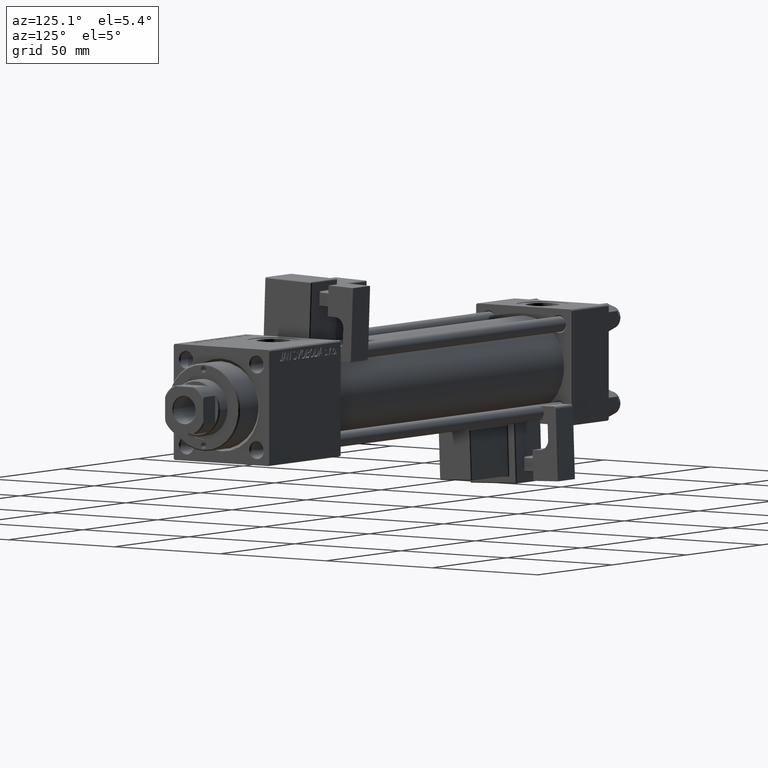
[diagram: clean part render]
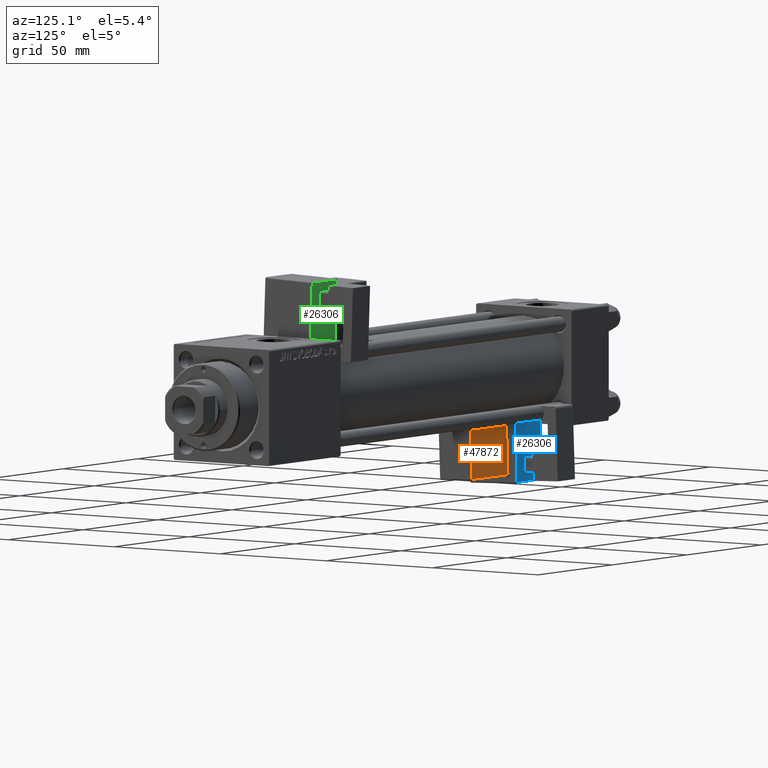
[diagram: same view with three faces highlighted in distinct colors, each labeled with its STEP entity id]
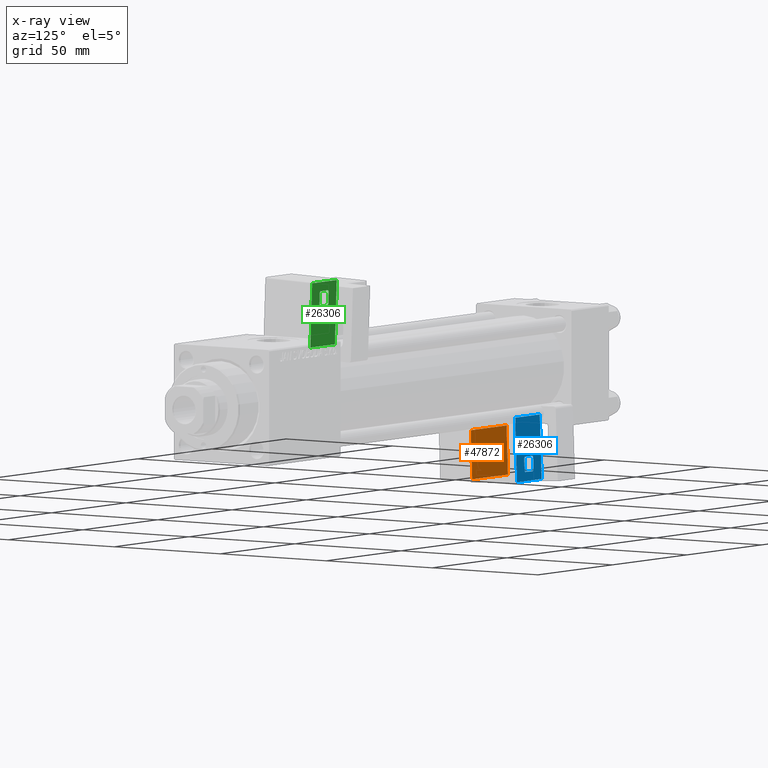
[diagram: x-ray of the same camera — body ghosted, the three highlighted faces saturated]
A machine part, auxiliary view with three faces highlighted in distinct colors.
The next image is the same camera in x-ray (body ghosted, the three faces saturated) — at least one of them is partly hidden behind the body in this view.
Their STEP definitions:

[orange] entity #47872 — the highlighted planar face has unit normal (0, -0.9994, -0.0353).
#728 = LINE ( 'NONE', #8928, #33169 ) ;
#3632 = DIRECTION ( 'NONE',  ( 0.000000000000000000, -1.000000000000000000, 0.000000000000000000 ) ) ;
#8928 = CARTESIAN_POINT ( 'NONE',  ( 33.25000000000000000, -15.25000000000000000, 2.000000000000008438 ) ) ;
#10077 = VERTEX_POINT ( 'NONE', #19362 ) ;
#10282 = EDGE_CURVE ( 'NONE', #50573, #42172, #13074, .T. ) ;
#10661 = EDGE_CURVE ( 'NONE', #10077, #25822, #18696, .T. ) ;
#11061 = CARTESIAN_POINT ( 'NONE',  ( 33.75000000000000000, -15.25000000000000000, 2.500000000000009326 ) ) ;
#11903 = CARTESIAN_POINT ( 'NONE',  ( 9.250000000000001776, -15.25000000000000000, 22.00000000000000355 ) ) ;
#12024 = CARTESIAN_POINT ( 'NONE',  ( 9.250000000000003553, -15.25000000000000000, 2.500000000000005773 ) ) ;
#13074 = LINE ( 'NONE', #46734, #23491 ) ;
#16238 = AXIS2_PLACEMENT_3D ( 'NONE', #34006, #3632, #20245 ) ;
#17438 = PLANE ( 'NONE',  #16238 ) ;
#18696 = LINE ( 'NONE', #11061, #40014 ) ;
#18723 = EDGE_LOOP ( 'NONE', ( #48418, #52258, #23457, #50899 ) ) ;
#19362 = CARTESIAN_POINT ( 'NONE',  ( 33.25000000000000000, -15.25000000000000000, 2.500000000000009326 ) ) ;
#20245 = DIRECTION ( 'NONE',  ( 0.000000000000000000, -0.000000000000000000, -1.000000000000000000 ) ) ;
#21223 = CARTESIAN_POINT ( 'NONE',  ( 33.25000000000000000, -15.25000000000000000, 21.50000000000000355 ) ) ;
#23457 = ORIENTED_EDGE ( 'NONE', *, *, #10282, .T. ) ;
#23491 = VECTOR ( 'NONE', #46204, 1000.000000000000000 ) ;
#25822 = VERTEX_POINT ( 'NONE', #12024 ) ;
#30959 = EDGE_CURVE ( 'NONE', #42172, #10077, #728, .T. ) ;
#31100 = CARTESIAN_POINT ( 'NONE',  ( 9.250000000000001776, -15.25000000000000000, 21.50000000000000000 ) ) ;
#33169 = VECTOR ( 'NONE', #49930, 1000.000000000000000 ) ;
#34006 = CARTESIAN_POINT ( 'NONE',  ( 33.75000000000000000, -15.25000000000000000, 22.00000000000000711 ) ) ;
#37693 = DIRECTION ( 'NONE',  ( -1.334402673828313339E-16, 0.000000000000000000, 1.000000000000000000 ) ) ;
#39560 = EDGE_CURVE ( 'NONE', #25822, #50573, #45325, .T. ) ;
#40014 = VECTOR ( 'NONE', #43134, 1000.000000000000000 ) ;
#40889 = FACE_OUTER_BOUND ( 'NONE', #18723, .T. ) ;
#42172 = VERTEX_POINT ( 'NONE', #21223 ) ;
#43134 = DIRECTION ( 'NONE',  ( -1.000000000000000000, 0.000000000000000000, -1.334402673828313339E-16 ) ) ;
#45325 = LINE ( 'NONE', #11903, #48087 ) ;
#46204 = DIRECTION ( 'NONE',  ( 1.000000000000000000, -0.000000000000000000, 1.334402673828313339E-16 ) ) ;
#46734 = CARTESIAN_POINT ( 'NONE',  ( 33.75000000000000000, -15.25000000000000000, 21.50000000000000355 ) ) ;
#47872 = ADVANCED_FACE ( 'NONE', ( #40889 ), #17438, .F. ) ;
#48087 = VECTOR ( 'NONE', #37693, 1000.000000000000000 ) ;
#48418 = ORIENTED_EDGE ( 'NONE', *, *, #10661, .T. ) ;
#49930 = DIRECTION ( 'NONE',  ( 1.734723475976807341E-16, -0.000000000000000000, -1.000000000000000000 ) ) ;
#50573 = VERTEX_POINT ( 'NONE', #31100 ) ;
#50899 = ORIENTED_EDGE ( 'NONE', *, *, #30959, .T. ) ;
#52258 = ORIENTED_EDGE ( 'NONE', *, *, #39560, .T. ) ;

[blue] entity #26306 — the highlighted planar face has unit normal (0, 0.9994, 0.0353).
#196 = VECTOR ( 'NONE', #35463, 1000.000000000000000 ) ;
#306 = ORIENTED_EDGE ( 'NONE', *, *, #2851, .T. ) ;
#349 = VERTEX_POINT ( 'NONE', #16246 ) ;
#536 = EDGE_CURVE ( 'NONE', #22992, #32422, #43758, .T. ) ;
#753 = VECTOR ( 'NONE', #18063, 1000.000000000000000 ) ;
#1219 = DIRECTION ( 'NONE',  ( -1.445602896647339163E-16, -0.000000000000000000, 1.000000000000000000 ) ) ;
#1527 = LINE ( 'NONE', #30636, #25609 ) ;
#1922 = EDGE_CURVE ( 'NONE', #33480, #13514, #35123, .T. ) ;
#2466 = EDGE_CURVE ( 'NONE', #13582, #349, #8608, .T. ) ;
#2851 = EDGE_CURVE ( 'NONE', #349, #28351, #42224, .T. ) ;
#2978 = CARTESIAN_POINT ( 'NONE',  ( -8.750000000000003553, -11.75000000000000000, -0.5000000000000002220 ) ) ;
#3792 = ORIENTED_EDGE ( 'NONE', *, *, #1922, .T. ) ;
#4761 = CARTESIAN_POINT ( 'NONE',  ( -2.499999999999978684, -11.75000000000000000, 3.000000000000000444 ) ) ;
#5103 = CARTESIAN_POINT ( 'NONE',  ( 3.000000000000000888, -11.75000000000000000, 3.500000000000008438 ) ) ;
#5224 = ORIENTED_EDGE ( 'NONE', *, *, #32495, .T. ) ;
#6403 = VERTEX_POINT ( 'NONE', #18248 ) ;
#6504 = CARTESIAN_POINT ( 'NONE',  ( -8.250000000000003553, -11.75000000000000000, -0.5000000000000002220 ) ) ;
#7328 = LINE ( 'NONE', #2978, #22363 ) ;
#7678 = EDGE_LOOP ( 'NONE', ( #16502, #33197, #3792, #16969, #29409, #10315, #306, #30737 ) ) ;
#8608 = LINE ( 'NONE', #4761, #40706 ) ;
#9376 = VECTOR ( 'NONE', #19324, 1000.000000000000000 ) ;
#9557 = AXIS2_PLACEMENT_3D ( 'NONE', #41565, #53511, #25266 ) ;
#9686 = CARTESIAN_POINT ( 'NONE',  ( 8.250000000000003553, -11.75000000000000000, -0.5000000000000002220 ) ) ;
#9978 = DIRECTION ( 'NONE',  ( 0.7071067811865474617, -0.000000000000000000, 0.7071067811865474617 ) ) ;
#10315 = ORIENTED_EDGE ( 'NONE', *, *, #2466, .T. ) ;
#10748 = LINE ( 'NONE', #52568, #196 ) ;
#13514 = VERTEX_POINT ( 'NONE', #45604 ) ;
#13582 = VERTEX_POINT ( 'NONE', #50741 ) ;
#14496 = CARTESIAN_POINT ( 'NONE',  ( 3.000000000000000888, -11.75000000000000000, 3.000000000000000888 ) ) ;
#14693 = LINE ( 'NONE', #34805, #41629 ) ;
#15915 = CARTESIAN_POINT ( 'NONE',  ( -3.000000000000000000, -11.75000000000000000, 8.500000000000007105 ) ) ;
#16060 = ORIENTED_EDGE ( 'NONE', *, *, #536, .T. ) ;
#16246 = CARTESIAN_POINT ( 'NONE',  ( -2.499999999999976907, -11.75000000000000000, 3.000000000000000444 ) ) ;
#16502 = ORIENTED_EDGE ( 'NONE', *, *, #47509, .T. ) ;
#16969 = ORIENTED_EDGE ( 'NONE', *, *, #28021, .T. ) ;
#17101 = FACE_BOUND ( 'NONE', #7678, .T. ) ;
#18063 = DIRECTION ( 'NONE',  ( 1.000000000000000000, -0.000000000000000000, 7.228014483236695816E-17 ) ) ;
#18113 = CARTESIAN_POINT ( 'NONE',  ( 3.000000000000000000, -11.75000000000000000, 9.000000000000001776 ) ) ;
#18248 = CARTESIAN_POINT ( 'NONE',  ( -8.250000000000000000, -11.75000000000000000, 24.50000000000000000 ) ) ;
#18780 = DIRECTION ( 'NONE',  ( -1.000000000000000000, 0.000000000000000000, -0.000000000000000000 ) ) ;
#19324 = DIRECTION ( 'NONE',  ( 1.334402673828313339E-16, -0.000000000000000000, -1.000000000000000000 ) ) ;
#19581 = CARTESIAN_POINT ( 'NONE',  ( 8.250000000000003553, -11.75000000000000000, -1.000000000000000888 ) ) ;
#20007 = LINE ( 'NONE', #15915, #26131 ) ;
#20371 = VECTOR ( 'NONE', #26690, 1000.000000000000000 ) ;
#20700 = VECTOR ( 'NONE', #47619, 1000.000000000000000 ) ;
#21363 = LINE ( 'NONE', #18113, #48307 ) ;
#22363 = VECTOR ( 'NONE', #18780, 1000.000000000000000 ) ;
#22992 = VERTEX_POINT ( 'NONE', #52351 ) ;
#23630 = VECTOR ( 'NONE', #52955, 1000.000000000000000 ) ;
#23662 = VERTEX_POINT ( 'NONE', #34593 ) ;
#24738 = PLANE ( 'NONE',  #9557 ) ;
#25022 = EDGE_CURVE ( 'NONE', #42268, #6403, #14693, .T. ) ;
#25266 = DIRECTION ( 'NONE',  ( 0.000000000000000000, -0.000000000000000000, 1.000000000000000000 ) ) ;
#25416 = VERTEX_POINT ( 'NONE', #5103 ) ;
#25609 = VECTOR ( 'NONE', #9978, 1000.000000000000114 ) ;
#26131 = VECTOR ( 'NONE', #32486, 1000.000000000000000 ) ;
#26306 = ADVANCED_FACE ( 'NONE', ( #50230, #17101 ), #24738, .T. ) ;
#26690 = DIRECTION ( 'NONE',  ( 0.000000000000000000, 0.000000000000000000, -1.000000000000000000 ) ) ;
#28021 = EDGE_CURVE ( 'NONE', #13514, #32887, #20007, .T. ) ;
#28351 = VERTEX_POINT ( 'NONE', #39707 ) ;
#28864 = CARTESIAN_POINT ( 'NONE',  ( -3.000000000000000000, -11.75000000000000000, 8.500000000000007105 ) ) ;
#29409 = ORIENTED_EDGE ( 'NONE', *, *, #39079, .T. ) ;
#30636 = CARTESIAN_POINT ( 'NONE',  ( 3.000000000000000888, -11.75000000000000000, 3.500000000000008438 ) ) ;
#30665 = EDGE_CURVE ( 'NONE', #23662, #33480, #38325, .T. ) ;
#30737 = ORIENTED_EDGE ( 'NONE', *, *, #40520, .T. ) ;
#31059 = CARTESIAN_POINT ( 'NONE',  ( 3.000000000000000000, -11.75000000000000000, 9.000000000000001776 ) ) ;
#32422 = VERTEX_POINT ( 'NONE', #9686 ) ;
#32486 = DIRECTION ( 'NONE',  ( -0.7071067811865524577, 0.000000000000000000, -0.7071067811865426878 ) ) ;
#32495 = EDGE_CURVE ( 'NONE', #6403, #22992, #10748, .T. ) ;
#32887 = VERTEX_POINT ( 'NONE', #28864 ) ;
#33197 = ORIENTED_EDGE ( 'NONE', *, *, #30665, .T. ) ;
#33480 = VERTEX_POINT ( 'NONE', #50359 ) ;
#34593 = CARTESIAN_POINT ( 'NONE',  ( 3.000000000000000000, -11.75000000000000000, 8.500000000000000000 ) ) ;
#34805 = CARTESIAN_POINT ( 'NONE',  ( -8.250000000000000000, -11.75000000000000000, 25.00000000000000000 ) ) ;
#34825 = CARTESIAN_POINT ( 'NONE',  ( -3.000000000000000000, -11.75000000000000000, 9.000000000000001776 ) ) ;
#35123 = LINE ( 'NONE', #31059, #20700 ) ;
#35463 = DIRECTION ( 'NONE',  ( 1.000000000000000000, -0.000000000000000000, -1.982541115402065110E-16 ) ) ;
#35689 = ORIENTED_EDGE ( 'NONE', *, *, #25022, .T. ) ;
#38325 = LINE ( 'NONE', #52156, #23630 ) ;
#39079 = EDGE_CURVE ( 'NONE', #32887, #13582, #50842, .T. ) ;
#39624 = ORIENTED_EDGE ( 'NONE', *, *, #52914, .T. ) ;
#39707 = CARTESIAN_POINT ( 'NONE',  ( 2.499999999999993339, -11.75000000000000000, 3.000000000000000888 ) ) ;
#40520 = EDGE_CURVE ( 'NONE', #28351, #25416, #1527, .T. ) ;
#40706 = VECTOR ( 'NONE', #46356, 1000.000000000000000 ) ;
#41565 = CARTESIAN_POINT ( 'NONE',  ( 0.000000000000000000, -11.75000000000000000, 0.000000000000000000 ) ) ;
#41629 = VECTOR ( 'NONE', #47831, 1000.000000000000000 ) ;
#42224 = LINE ( 'NONE', #14496, #753 ) ;
#42268 = VERTEX_POINT ( 'NONE', #6504 ) ;
#43758 = LINE ( 'NONE', #19581, #9376 ) ;
#45604 = CARTESIAN_POINT ( 'NONE',  ( -2.499999999999999556, -11.75000000000000000, 9.000000000000001776 ) ) ;
#46356 = DIRECTION ( 'NONE',  ( 0.7071067811865472397, -0.000000000000000000, -0.7071067811865479058 ) ) ;
#47509 = EDGE_CURVE ( 'NONE', #25416, #23662, #21363, .T. ) ;
#47619 = DIRECTION ( 'NONE',  ( -1.000000000000000000, 0.000000000000000000, 0.000000000000000000 ) ) ;
#47831 = DIRECTION ( 'NONE',  ( 1.334402673828313093E-16, -0.000000000000000000, 1.000000000000000000 ) ) ;
#48307 = VECTOR ( 'NONE', #1219, 1000.000000000000000 ) ;
#48515 = EDGE_LOOP ( 'NONE', ( #39624, #35689, #5224, #16060 ) ) ;
#50230 = FACE_OUTER_BOUND ( 'NONE', #48515, .T. ) ;
#50359 = CARTESIAN_POINT ( 'NONE',  ( 2.500000000000006661, -11.75000000000000000, 9.000000000000001776 ) ) ;
#50741 = CARTESIAN_POINT ( 'NONE',  ( -3.000000000000000000, -11.75000000000000000, 3.500000000000022204 ) ) ;
#50842 = LINE ( 'NONE', #34825, #20371 ) ;
#52156 = CARTESIAN_POINT ( 'NONE',  ( 2.500000000000006661, -11.75000000000000000, 9.000000000000001776 ) ) ;
#52351 = CARTESIAN_POINT ( 'NONE',  ( 8.250000000000000000, -11.75000000000000000, 24.49999999999999645 ) ) ;
#52568 = CARTESIAN_POINT ( 'NONE',  ( 8.750000000000000000, -11.75000000000000000, 24.49999999999999645 ) ) ;
#52914 = EDGE_CURVE ( 'NONE', #32422, #42268, #7328, .T. ) ;
#52955 = DIRECTION ( 'NONE',  ( -0.7071067811865426878, -0.000000000000000000, 0.7071067811865524577 ) ) ;
#53511 = DIRECTION ( 'NONE',  ( 0.000000000000000000, 1.000000000000000000, 0.000000000000000000 ) ) ;

[green] entity #26306 — the highlighted planar face has unit normal (0, 0.9994, -0.0353).
#196 = VECTOR ( 'NONE', #35463, 1000.000000000000000 ) ;
#306 = ORIENTED_EDGE ( 'NONE', *, *, #2851, .T. ) ;
#349 = VERTEX_POINT ( 'NONE', #16246 ) ;
#536 = EDGE_CURVE ( 'NONE', #22992, #32422, #43758, .T. ) ;
#753 = VECTOR ( 'NONE', #18063, 1000.000000000000000 ) ;
#1219 = DIRECTION ( 'NONE',  ( -1.445602896647339163E-16, -0.000000000000000000, 1.000000000000000000 ) ) ;
#1527 = LINE ( 'NONE', #30636, #25609 ) ;
#1922 = EDGE_CURVE ( 'NONE', #33480, #13514, #35123, .T. ) ;
#2466 = EDGE_CURVE ( 'NONE', #13582, #349, #8608, .T. ) ;
#2851 = EDGE_CURVE ( 'NONE', #349, #28351, #42224, .T. ) ;
#2978 = CARTESIAN_POINT ( 'NONE',  ( -8.750000000000003553, -11.75000000000000000, -0.5000000000000002220 ) ) ;
#3792 = ORIENTED_EDGE ( 'NONE', *, *, #1922, .T. ) ;
#4761 = CARTESIAN_POINT ( 'NONE',  ( -2.499999999999978684, -11.75000000000000000, 3.000000000000000444 ) ) ;
#5103 = CARTESIAN_POINT ( 'NONE',  ( 3.000000000000000888, -11.75000000000000000, 3.500000000000008438 ) ) ;
#5224 = ORIENTED_EDGE ( 'NONE', *, *, #32495, .T. ) ;
#6403 = VERTEX_POINT ( 'NONE', #18248 ) ;
#6504 = CARTESIAN_POINT ( 'NONE',  ( -8.250000000000003553, -11.75000000000000000, -0.5000000000000002220 ) ) ;
#7328 = LINE ( 'NONE', #2978, #22363 ) ;
#7678 = EDGE_LOOP ( 'NONE', ( #16502, #33197, #3792, #16969, #29409, #10315, #306, #30737 ) ) ;
#8608 = LINE ( 'NONE', #4761, #40706 ) ;
#9376 = VECTOR ( 'NONE', #19324, 1000.000000000000000 ) ;
#9557 = AXIS2_PLACEMENT_3D ( 'NONE', #41565, #53511, #25266 ) ;
#9686 = CARTESIAN_POINT ( 'NONE',  ( 8.250000000000003553, -11.75000000000000000, -0.5000000000000002220 ) ) ;
#9978 = DIRECTION ( 'NONE',  ( 0.7071067811865474617, -0.000000000000000000, 0.7071067811865474617 ) ) ;
#10315 = ORIENTED_EDGE ( 'NONE', *, *, #2466, .T. ) ;
#10748 = LINE ( 'NONE', #52568, #196 ) ;
#13514 = VERTEX_POINT ( 'NONE', #45604 ) ;
#13582 = VERTEX_POINT ( 'NONE', #50741 ) ;
#14496 = CARTESIAN_POINT ( 'NONE',  ( 3.000000000000000888, -11.75000000000000000, 3.000000000000000888 ) ) ;
#14693 = LINE ( 'NONE', #34805, #41629 ) ;
#15915 = CARTESIAN_POINT ( 'NONE',  ( -3.000000000000000000, -11.75000000000000000, 8.500000000000007105 ) ) ;
#16060 = ORIENTED_EDGE ( 'NONE', *, *, #536, .T. ) ;
#16246 = CARTESIAN_POINT ( 'NONE',  ( -2.499999999999976907, -11.75000000000000000, 3.000000000000000444 ) ) ;
#16502 = ORIENTED_EDGE ( 'NONE', *, *, #47509, .T. ) ;
#16969 = ORIENTED_EDGE ( 'NONE', *, *, #28021, .T. ) ;
#17101 = FACE_BOUND ( 'NONE', #7678, .T. ) ;
#18063 = DIRECTION ( 'NONE',  ( 1.000000000000000000, -0.000000000000000000, 7.228014483236695816E-17 ) ) ;
#18113 = CARTESIAN_POINT ( 'NONE',  ( 3.000000000000000000, -11.75000000000000000, 9.000000000000001776 ) ) ;
#18248 = CARTESIAN_POINT ( 'NONE',  ( -8.250000000000000000, -11.75000000000000000, 24.50000000000000000 ) ) ;
#18780 = DIRECTION ( 'NONE',  ( -1.000000000000000000, 0.000000000000000000, -0.000000000000000000 ) ) ;
#19324 = DIRECTION ( 'NONE',  ( 1.334402673828313339E-16, -0.000000000000000000, -1.000000000000000000 ) ) ;
#19581 = CARTESIAN_POINT ( 'NONE',  ( 8.250000000000003553, -11.75000000000000000, -1.000000000000000888 ) ) ;
#20007 = LINE ( 'NONE', #15915, #26131 ) ;
#20371 = VECTOR ( 'NONE', #26690, 1000.000000000000000 ) ;
#20700 = VECTOR ( 'NONE', #47619, 1000.000000000000000 ) ;
#21363 = LINE ( 'NONE', #18113, #48307 ) ;
#22363 = VECTOR ( 'NONE', #18780, 1000.000000000000000 ) ;
#22992 = VERTEX_POINT ( 'NONE', #52351 ) ;
#23630 = VECTOR ( 'NONE', #52955, 1000.000000000000000 ) ;
#23662 = VERTEX_POINT ( 'NONE', #34593 ) ;
#24738 = PLANE ( 'NONE',  #9557 ) ;
#25022 = EDGE_CURVE ( 'NONE', #42268, #6403, #14693, .T. ) ;
#25266 = DIRECTION ( 'NONE',  ( 0.000000000000000000, -0.000000000000000000, 1.000000000000000000 ) ) ;
#25416 = VERTEX_POINT ( 'NONE', #5103 ) ;
#25609 = VECTOR ( 'NONE', #9978, 1000.000000000000114 ) ;
#26131 = VECTOR ( 'NONE', #32486, 1000.000000000000000 ) ;
#26306 = ADVANCED_FACE ( 'NONE', ( #50230, #17101 ), #24738, .T. ) ;
#26690 = DIRECTION ( 'NONE',  ( 0.000000000000000000, 0.000000000000000000, -1.000000000000000000 ) ) ;
#28021 = EDGE_CURVE ( 'NONE', #13514, #32887, #20007, .T. ) ;
#28351 = VERTEX_POINT ( 'NONE', #39707 ) ;
#28864 = CARTESIAN_POINT ( 'NONE',  ( -3.000000000000000000, -11.75000000000000000, 8.500000000000007105 ) ) ;
#29409 = ORIENTED_EDGE ( 'NONE', *, *, #39079, .T. ) ;
#30636 = CARTESIAN_POINT ( 'NONE',  ( 3.000000000000000888, -11.75000000000000000, 3.500000000000008438 ) ) ;
#30665 = EDGE_CURVE ( 'NONE', #23662, #33480, #38325, .T. ) ;
#30737 = ORIENTED_EDGE ( 'NONE', *, *, #40520, .T. ) ;
#31059 = CARTESIAN_POINT ( 'NONE',  ( 3.000000000000000000, -11.75000000000000000, 9.000000000000001776 ) ) ;
#32422 = VERTEX_POINT ( 'NONE', #9686 ) ;
#32486 = DIRECTION ( 'NONE',  ( -0.7071067811865524577, 0.000000000000000000, -0.7071067811865426878 ) ) ;
#32495 = EDGE_CURVE ( 'NONE', #6403, #22992, #10748, .T. ) ;
#32887 = VERTEX_POINT ( 'NONE', #28864 ) ;
#33197 = ORIENTED_EDGE ( 'NONE', *, *, #30665, .T. ) ;
#33480 = VERTEX_POINT ( 'NONE', #50359 ) ;
#34593 = CARTESIAN_POINT ( 'NONE',  ( 3.000000000000000000, -11.75000000000000000, 8.500000000000000000 ) ) ;
#34805 = CARTESIAN_POINT ( 'NONE',  ( -8.250000000000000000, -11.75000000000000000, 25.00000000000000000 ) ) ;
#34825 = CARTESIAN_POINT ( 'NONE',  ( -3.000000000000000000, -11.75000000000000000, 9.000000000000001776 ) ) ;
#35123 = LINE ( 'NONE', #31059, #20700 ) ;
#35463 = DIRECTION ( 'NONE',  ( 1.000000000000000000, -0.000000000000000000, -1.982541115402065110E-16 ) ) ;
#35689 = ORIENTED_EDGE ( 'NONE', *, *, #25022, .T. ) ;
#38325 = LINE ( 'NONE', #52156, #23630 ) ;
#39079 = EDGE_CURVE ( 'NONE', #32887, #13582, #50842, .T. ) ;
#39624 = ORIENTED_EDGE ( 'NONE', *, *, #52914, .T. ) ;
#39707 = CARTESIAN_POINT ( 'NONE',  ( 2.499999999999993339, -11.75000000000000000, 3.000000000000000888 ) ) ;
#40520 = EDGE_CURVE ( 'NONE', #28351, #25416, #1527, .T. ) ;
#40706 = VECTOR ( 'NONE', #46356, 1000.000000000000000 ) ;
#41565 = CARTESIAN_POINT ( 'NONE',  ( 0.000000000000000000, -11.75000000000000000, 0.000000000000000000 ) ) ;
#41629 = VECTOR ( 'NONE', #47831, 1000.000000000000000 ) ;
#42224 = LINE ( 'NONE', #14496, #753 ) ;
#42268 = VERTEX_POINT ( 'NONE', #6504 ) ;
#43758 = LINE ( 'NONE', #19581, #9376 ) ;
#45604 = CARTESIAN_POINT ( 'NONE',  ( -2.499999999999999556, -11.75000000000000000, 9.000000000000001776 ) ) ;
#46356 = DIRECTION ( 'NONE',  ( 0.7071067811865472397, -0.000000000000000000, -0.7071067811865479058 ) ) ;
#47509 = EDGE_CURVE ( 'NONE', #25416, #23662, #21363, .T. ) ;
#47619 = DIRECTION ( 'NONE',  ( -1.000000000000000000, 0.000000000000000000, 0.000000000000000000 ) ) ;
#47831 = DIRECTION ( 'NONE',  ( 1.334402673828313093E-16, -0.000000000000000000, 1.000000000000000000 ) ) ;
#48307 = VECTOR ( 'NONE', #1219, 1000.000000000000000 ) ;
#48515 = EDGE_LOOP ( 'NONE', ( #39624, #35689, #5224, #16060 ) ) ;
#50230 = FACE_OUTER_BOUND ( 'NONE', #48515, .T. ) ;
#50359 = CARTESIAN_POINT ( 'NONE',  ( 2.500000000000006661, -11.75000000000000000, 9.000000000000001776 ) ) ;
#50741 = CARTESIAN_POINT ( 'NONE',  ( -3.000000000000000000, -11.75000000000000000, 3.500000000000022204 ) ) ;
#50842 = LINE ( 'NONE', #34825, #20371 ) ;
#52156 = CARTESIAN_POINT ( 'NONE',  ( 2.500000000000006661, -11.75000000000000000, 9.000000000000001776 ) ) ;
#52351 = CARTESIAN_POINT ( 'NONE',  ( 8.250000000000000000, -11.75000000000000000, 24.49999999999999645 ) ) ;
#52568 = CARTESIAN_POINT ( 'NONE',  ( 8.750000000000000000, -11.75000000000000000, 24.49999999999999645 ) ) ;
#52914 = EDGE_CURVE ( 'NONE', #32422, #42268, #7328, .T. ) ;
#52955 = DIRECTION ( 'NONE',  ( -0.7071067811865426878, -0.000000000000000000, 0.7071067811865524577 ) ) ;
#53511 = DIRECTION ( 'NONE',  ( 0.000000000000000000, 1.000000000000000000, 0.000000000000000000 ) ) ;